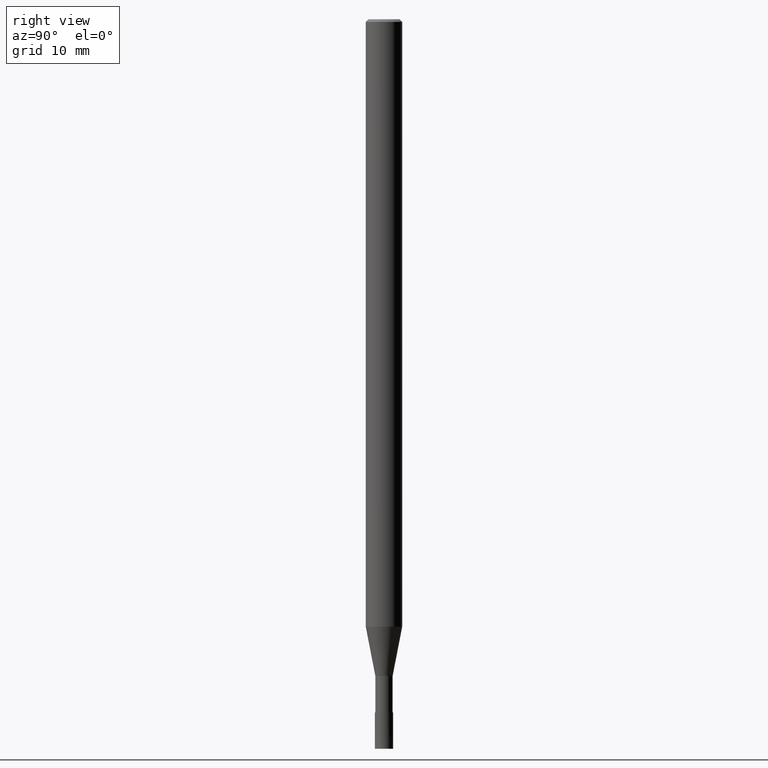
[diagram: clean part render]
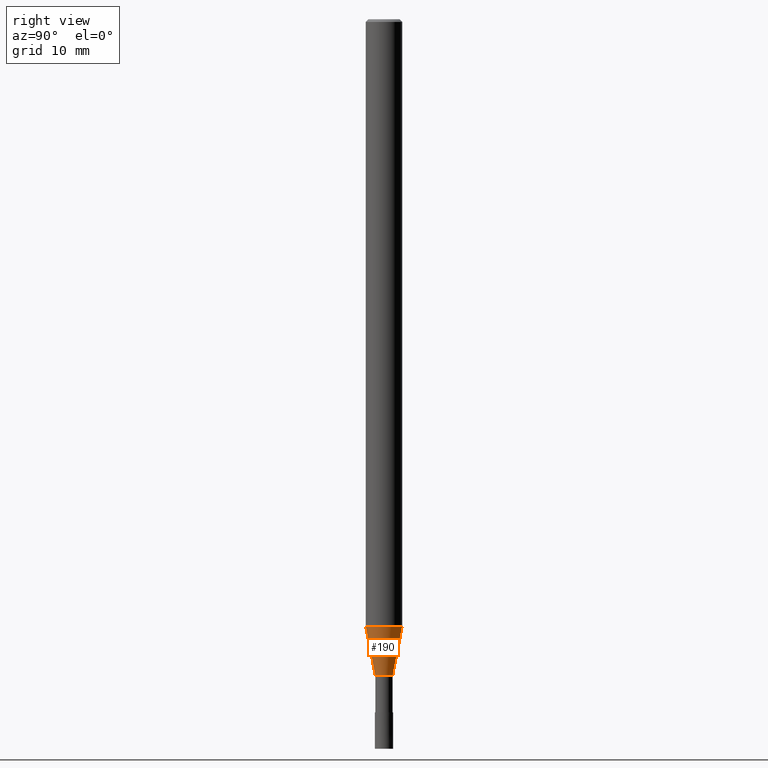
[diagram: same view with one face highlighted and labeled with its STEP entity id]
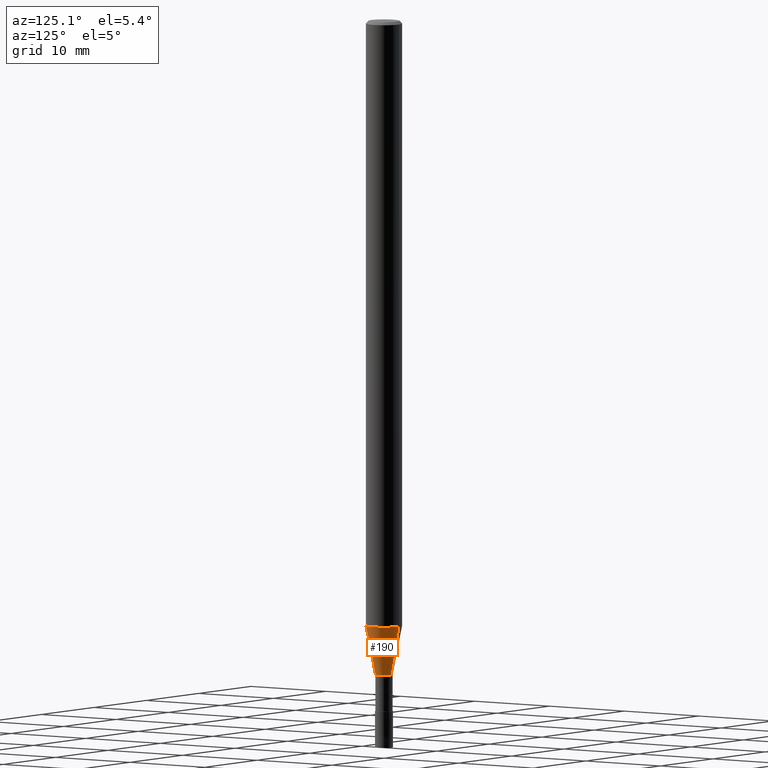
[diagram: same view with one face highlighted and labeled with its STEP entity id]
A machine part, right view. The second image highlights one B-rep face of the part: STEP entity #190.
A second angle (auxiliary view) of the same face is appended — the face is thin or edge-on in the first view.
In plain terms, the highlighted conical surface has half-angle 11 deg.
Its self-contained STEP definition (entity closure, byte-faithful):
#98=EDGE_CURVE('',#184,#186,#236,.T.);
#132=EDGE_CURVE('',#174,#186,#276,.T.);
#140=VERTEX_POINT('',#284);
#174=VERTEX_POINT('',#326);
#178=EDGE_CURVE('',#184,#140,#330,.T.);
#184=VERTEX_POINT('',#336);
#186=VERTEX_POINT('',#338);
#190=ADVANCED_FACE('',(#342),#343,.T.);
#196=EDGE_CURVE('',#140,#174,#349,.T.);
#236=CIRCLE('',#385,1.99995);
#276=LINE('',#428,#429);
#284=CARTESIAN_POINT('',(0.0,0.94995,-72.0));
#326=CARTESIAN_POINT('',(1.16331480581357E-016,-0.94995,-72.0));
#330=LINE('',#493,#494);
#336=CARTESIAN_POINT('',(0.0,1.99995,-66.598));
#338=CARTESIAN_POINT('',(2.44915147732706E-016,-1.99995,-66.598));
#342=FACE_OUTER_BOUND('',#509,.T.);
#343=CONICAL_SURFACE('',#510,1.47495,0.191978649183841);
#349=CIRCLE('',#519,0.94995);
#385=AXIS2_PLACEMENT_3D('',#554,#555,#556);
#428=CARTESIAN_POINT('',(1.80623314157031E-016,-1.47495,-69.299));
#429=VECTOR('',#611,1.0);
#493=CARTESIAN_POINT('',(-1.80623314157032E-016,1.47495,-69.299));
#494=VECTOR('',#680,1.0);
#509=EDGE_LOOP('',(#686,#687,#688,#689));
#510=AXIS2_PLACEMENT_3D('',#690,#691,#692);
#519=AXIS2_PLACEMENT_3D('',#699,#700,#701);
#554=CARTESIAN_POINT('',(0.0,0.0,-66.598));
#555=DIRECTION('',(0.0,0.0,-1.0));
#556=DIRECTION('',(0.0,1.0,0.0));
#611=DIRECTION('',(2.33656809909206E-017,-0.19080156589086,0.981628627564211));
#680=DIRECTION('',(2.33656809909206E-017,-0.19080156589086,-0.981628627564211));
#686=ORIENTED_EDGE('',*,*,#178,.F.);
#687=ORIENTED_EDGE('',*,*,#98,.T.);
#688=ORIENTED_EDGE('',*,*,#132,.F.);
#689=ORIENTED_EDGE('',*,*,#196,.F.);
#690=CARTESIAN_POINT('',(0.0,0.0,-69.299));
#691=DIRECTION('',(-0.0,-0.0,1.0));
#692=DIRECTION('',(0.0,1.0,0.0));
#699=CARTESIAN_POINT('',(0.0,0.0,-72.0));
#700=DIRECTION('',(0.0,0.0,-1.0));
#701=DIRECTION('',(0.0,1.0,0.0));